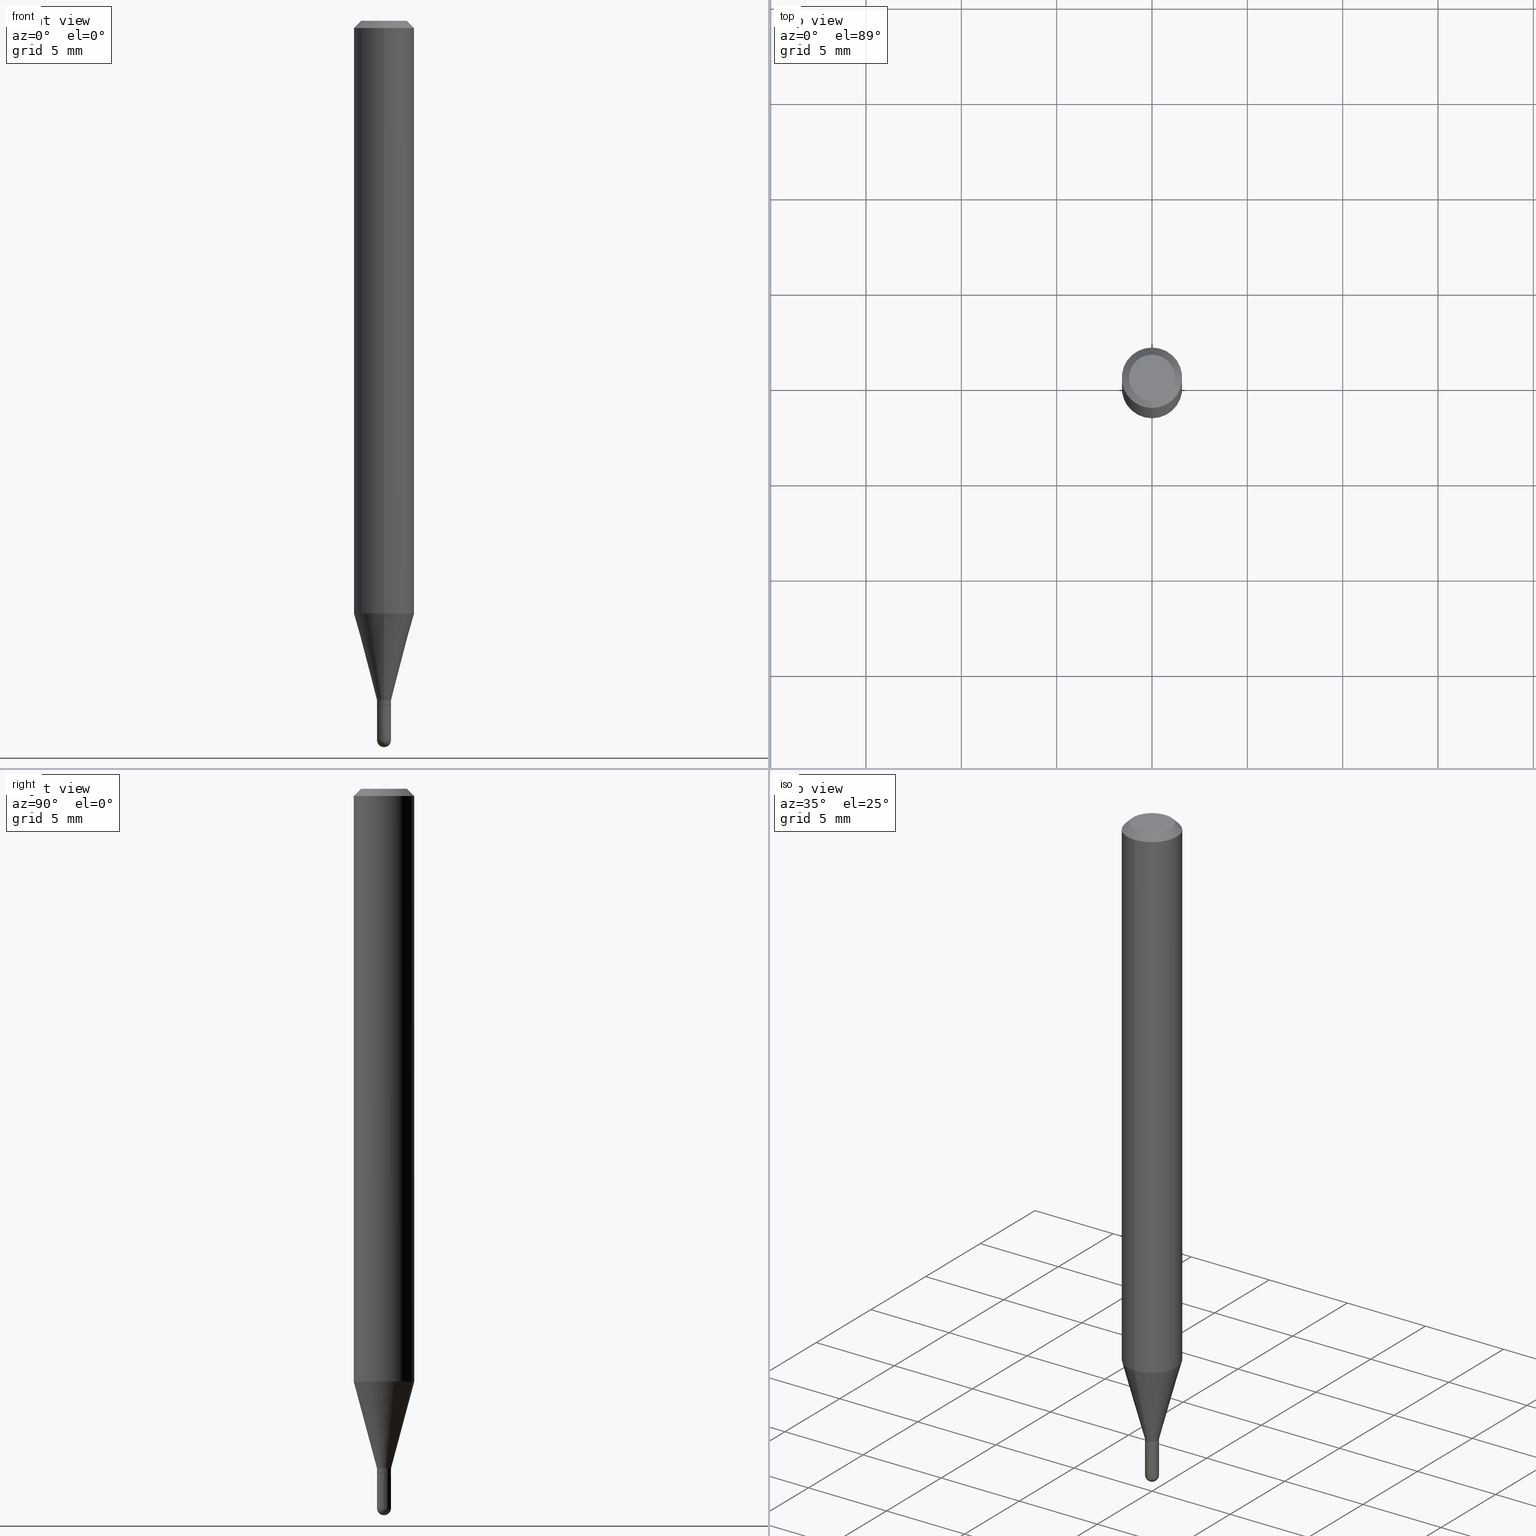
[diagram: canonical four-view strip — front | top / right | iso, engineering-drawing reading convention]
A machine part, canonical four-view strip (front | top / right | iso — engineering-drawing reading convention). The complete STEP part file that produces these views, byte-faithful:
ISO-10303-21;
HEADER;
FILE_DESCRIPTION (( 'STEP AP203' ),
    '1' );
FILE_NAME ('00906.STEP',
    '2024-03-07T18:48:20',
    ( '' ),
    ( '' ),
    'SwSTEP 2.0',
    'SolidWorks 2023',
    '' );
FILE_SCHEMA (( 'CONFIG_CONTROL_DESIGN' ));
ENDSEC;

DATA;
#1 = DIRECTION ( 'NONE',  ( 1.000000000000000000, -6.982962677686299054E-15, 0.000000000000000000 ) ) ;
#2 = ORIENTED_EDGE ( 'NONE', *, *, #342, .F. ) ;
#3 = CARTESIAN_POINT ( 'NONE',  ( 3.431010807370303051E-29, -4.898522437845382754E-15, -1.403000000000000025 ) ) ;
#4 = CONICAL_SURFACE ( 'NONE', #299, 0.01400000000000000203, 0.7853981633974739252 ) ;
#5 = CALENDAR_DATE ( 2024, 7, 3 ) ;
#6 = CARTESIAN_POINT ( 'NONE',  ( 0.01450000000000000074, -5.034716090611816663E-15, -1.413000000000000256 ) ) ;
#7 = DIRECTION ( 'NONE',  ( -2.445468806185136877E-29, 3.491481338843145188E-15, 1.000000000000000000 ) ) ;
#8 = ADVANCED_FACE ( 'NONE', ( #445 ), #252, .F. ) ;
#9 = CALENDAR_DATE ( 2024, 7, 3 ) ;
#10 = VERTEX_POINT ( 'NONE', #491 ) ;
#11 = PLANE ( 'NONE',  #356 ) ;
#12 = LINE ( 'NONE', #144, #48 ) ;
#13 = ORIENTED_EDGE ( 'NONE', *, *, #435, .T. ) ;
#14 = APPROVAL_ROLE ( '' ) ;
#15 = LINE ( 'NONE', #504, #341 ) ;
#16 = DIRECTION ( 'NONE',  ( -4.851104656540964275E-15, -0.7071067811865500152, -0.7071067811865450192 ) ) ;
#17 = AXIS2_PLACEMENT_3D ( 'NONE', #183, #284, #246 ) ;
#18 = EDGE_CURVE ( 'NONE', #275, #20, #12, .T. ) ;
#19 = CARTESIAN_POINT ( 'NONE',  ( 3.455447423139598357E-29, -4.933463131785365512E-15, -1.413000000000000256 ) ) ;
#20 = VERTEX_POINT ( 'NONE', #296 ) ;
#21 = APPROVAL_PERSON_ORGANIZATION ( #436, #364, #508 ) ;
#22 = CARTESIAN_POINT ( 'NONE',  ( 3.668222531044516962E-31, -5.237194338394923985E-17, -0.01500000000000000812 ) ) ;
#23 = ORIENTED_EDGE ( 'NONE', *, *, #510, .F. ) ;
#24 = CARTESIAN_POINT ( 'NONE',  ( 2.166989206773624835E-46, -3.093853633205331815E-32, -8.861195804374694260E-18 ) ) ;
#25 = DIRECTION ( 'NONE',  ( 1.000000000000000000, -6.982962677686266711E-15, 4.876176775795935793E-29 ) ) ;
#26 = EDGE_CURVE ( 'NONE', #87, #233, #190, .T. ) ;
#27 = CIRCLE ( 'NONE', #176, 0.01450000000000000074 ) ;
#28 = LENGTH_MEASURE_WITH_UNIT ( LENGTH_MEASURE( 0.02539999999999999897 ), #120 );
#29 = ADVANCED_BREP_SHAPE_REPRESENTATION ( '00906', ( #173, #338, #269 ), #83 ) ;
#30 = ORIENTED_EDGE ( 'NONE', *, *, #325, .F. ) ;
#31 = ORIENTED_EDGE ( 'NONE', *, *, #235, .F. ) ;
#32 = CARTESIAN_POINT ( 'NONE',  ( 4.440892098500927901E-16, 0.06249999999999995837, -0.01500000000000022669 ) ) ;
#33 = COORDINATED_UNIVERSAL_TIME_OFFSET ( 5, 0, .BEHIND. ) ;
#34 = LINE ( 'NONE', #169, #427 ) ;
#35 = CIRCLE ( 'NONE', #109, 0.06250000000000000000 ) ;
#36 = EDGE_CURVE ( 'NONE', #96, #355, #387, .T. ) ;
#37 = DIRECTION ( 'NONE',  ( -2.445481687363009475E-29, 3.491462892263280603E-15, 1.000000000000000000 ) ) ;
#38 = ORIENTED_EDGE ( 'NONE', *, *, #342, .T. ) ;
#39 = CARTESIAN_POINT ( 'NONE',  ( 3.631503920468710854E-29, -5.188371266710256857E-15, -1.485500000000000043 ) ) ;
#40 = DATE_AND_TIME ( #227, #495 ) ;
#41 = EDGE_LOOP ( 'NONE', ( #374, #507, #201, #51 ) ) ;
#42 = PLANE ( 'NONE',  #312 ) ;
#43 = CARTESIAN_POINT ( 'NONE',  ( 3.455465624243933056E-29, -4.933437066768016053E-15, -1.413000000000000256 ) ) ;
#44 = ORIENTED_EDGE ( 'NONE', *, *, #428, .F. ) ;
#45 = DIRECTION ( 'NONE',  ( 4.937700262164548042E-15, 0.7071067811865451302, -0.7071067811865499042 ) ) ;
#46 = ADVANCED_FACE ( 'NONE', ( #300 ), #346, .T. ) ;
#47 = FACE_OUTER_BOUND ( 'NONE', #429, .T. ) ;
#48 = VECTOR ( 'NONE', #62, 39.37007874015748854 ) ;
#49 = DATE_TIME_ROLE ( 'classification_date' ) ;
#50 = AXIS2_PLACEMENT_3D ( 'NONE', #22, #98, #411 ) ;
#51 = ORIENTED_EDGE ( 'NONE', *, *, #168, .F. ) ;
#52 = ORIENTED_EDGE ( 'NONE', *, *, #380, .F. ) ;
#53 = DIRECTION ( 'NONE',  ( -2.445468806185136597E-29, 3.491481338843145583E-15, 1.000000000000000000 ) ) ;
#54 = VERTEX_POINT ( 'NONE', #100 ) ;
#55 = DIRECTION ( 'NONE',  ( -2.445481687363009755E-29, 3.491462892263280997E-15, 1.000000000000000000 ) ) ;
#56 = CC_DESIGN_PERSON_AND_ORGANIZATION_ASSIGNMENT ( #396, #464, ( #378 ) ) ;
#57 = DIRECTION ( 'NONE',  ( -6.982962677686265922E-15, -1.000000000000000000, 4.370956789862821150E-15 ) ) ;
#58 = AXIS2_PLACEMENT_3D ( 'NONE', #191, #259, #379 ) ;
#59 = ORIENTED_EDGE ( 'NONE', *, *, #170, .T. ) ;
#60 = VECTOR ( 'NONE', #289, 39.37007874015748143 ) ;
#61 = ORIENTED_EDGE ( 'NONE', *, *, #194, .F. ) ;
#62 = DIRECTION ( 'NONE',  ( 1.839019923739601893E-15, 0.2588190451025252359, 0.9659258262890670910 ) ) ;
#63 = PRODUCT ( '00906', '00906', '', ( #432 ) ) ;
#64 = EDGE_CURVE ( 'NONE', #331, #20, #35, .T. ) ;
#65 = ADVANCED_FACE ( 'NONE', ( #492 ), #141, .T. ) ;
#66 = CARTESIAN_POINT ( 'NONE',  ( -1.012529588264503255E-16, -0.01449999999999992441, 5.062621193781730250E-17 ) ) ;
#67 = CIRCLE ( 'NONE', #437, 0.01449999999999992441 ) ;
#68 = LOCAL_TIME ( 13, 48, 20.00000000000000000, #236 ) ;
#69 = CARTESIAN_POINT ( 'NONE',  ( 3.455465624243933056E-29, -4.933437066768016053E-15, -1.413000000000000256 ) ) ;
#70 = DIRECTION ( 'NONE',  ( -1.000000000000000000, 7.105427357601001070E-15, -4.926315508542082329E-29 ) ) ;
#71 = EDGE_LOOP ( 'NONE', ( #385, #405, #106, #292 ) ) ;
#72 = SECURITY_CLASSIFICATION_LEVEL ( 'unclassified' ) ;
#73 = CIRCLE ( 'NONE', #381, 0.01450000000000003890 ) ;
#74 = ORIENTED_EDGE ( 'NONE', *, *, #249, .T. ) ;
#75 = CARTESIAN_POINT ( 'NONE',  ( 0.01450000000000000074, -5.161282289144880799E-15, -1.485500000000000043 ) ) ;
#76 =( CONVERSION_BASED_UNIT ( 'INCH', #28 ) LENGTH_UNIT ( ) NAMED_UNIT ( #466 ) );
#77 = CARTESIAN_POINT ( 'NONE',  ( 3.455465624243933056E-29, -4.933437066768016053E-15, -1.413000000000000256 ) ) ;
#78 = PRODUCT_DEFINITION ( 'UNKNOWN', '', #378, #324 ) ;
#79 = PERSON_AND_ORGANIZATION ( #358, #416 ) ;
#80 = FACE_OUTER_BOUND ( 'NONE', #389, .T. ) ;
#81 = ORIENTED_EDGE ( 'NONE', *, *, #18, .F. ) ;
#82 = CIRCLE ( 'NONE', #228, 0.01449999999999992441 ) ;
#83 =( GEOMETRIC_REPRESENTATION_CONTEXT ( 3 ) GLOBAL_UNCERTAINTY_ASSIGNED_CONTEXT ( ( #455 ) ) GLOBAL_UNIT_ASSIGNED_CONTEXT ( ( #76, #160, #506 ) ) REPRESENTATION_CONTEXT ( 'NONE', 'WORKASPACE' ) );
#84 = APPROVAL_STATUS ( 'not_yet_approved' ) ;
#85 = ORIENTED_EDGE ( 'NONE', *, *, #202, .T. ) ;
#86 = CARTESIAN_POINT ( 'NONE',  ( 0.000000000000000000, 0.000000000000000000, 0.000000000000000000 ) ) ;
#87 = VERTEX_POINT ( 'NONE', #75 ) ;
#88 = DIRECTION ( 'NONE',  ( 6.982962677686265922E-15, 1.000000000000000000, 0.000000000000000000 ) ) ;
#89 = EDGE_LOOP ( 'NONE', ( #85, #490, #2, #392, #266 ) ) ;
#90 = CARTESIAN_POINT ( 'NONE',  ( 2.735589532676705169E-16, 0.01449999999999502555, -1.403000000000000025 ) ) ;
#91 = ORIENTED_EDGE ( 'NONE', *, *, #472, .F. ) ;
#92 = CIRCLE ( 'NONE', #58, 0.04749999999999999362 ) ;
#93 = LOCAL_TIME ( 13, 48, 20.00000000000000000, #179 ) ;
#94 = LINE ( 'NONE', #251, #219 ) ;
#95 = ADVANCED_FACE ( 'NONE', ( #493 ), #146, .T. ) ;
#96 = VERTEX_POINT ( 'NONE', #101 ) ;
#97 = SPHERICAL_SURFACE ( 'NONE', #198, 0.01450000000000003890 ) ;
#98 = DIRECTION ( 'NONE',  ( -2.445481687363009475E-29, 3.491462892263280603E-15, 1.000000000000000000 ) ) ;
#99 = CARTESIAN_POINT ( 'NONE',  ( 1.012529588264854174E-16, 0.01449999999999506545, -1.413000000000000256 ) ) ;
#100 = CARTESIAN_POINT ( 'NONE',  ( 3.667583213718050413E-29, -5.238109877194100108E-15, -1.500000000000000222 ) ) ;
#101 = CARTESIAN_POINT ( 'NONE',  ( 1.012523398458485463E-16, 0.01399999999999506674, -1.413000000000000256 ) ) ;
#102 = AXIS2_PLACEMENT_3D ( 'NONE', #494, #443, #210 ) ;
#103 = CLOSED_SHELL ( 'NONE', ( #164, #205, #127, #149, #46, #258, #332, #372, #243, #281, #119, #65 ) ) ;
#104 = AXIS2_PLACEMENT_3D ( 'NONE', #152, #304, #424 ) ;
#105 = EDGE_CURVE ( 'NONE', #434, #320, #92, .T. ) ;
#106 = ORIENTED_EDGE ( 'NONE', *, *, #168, .T. ) ;
#107 = CARTESIAN_POINT ( 'NONE',  ( 3.454242883400251668E-29, -4.931691335321885256E-15, -1.412500000000000311 ) ) ;
#108 = DIRECTION ( 'NONE',  ( 6.982962677686265922E-15, 1.000000000000000000, -3.483106191921935554E-15 ) ) ;
#109 = AXIS2_PLACEMENT_3D ( 'NONE', #255, #297, #337 ) ;
#110 = AXIS2_PLACEMENT_3D ( 'NONE', #357, #511, #166 ) ;
#111 = EDGE_LOOP ( 'NONE', ( #272, #402 ) ) ;
#112 = APPLICATION_CONTEXT ( 'configuration controlled 3d designs of mechanical parts and assemblies' ) ;
#113 = CARTESIAN_POINT ( 'NONE',  ( 0.000000000000000000, 0.000000000000000000, 0.000000000000000000 ) ) ;
#114 = PERSON_AND_ORGANIZATION ( #358, #416 ) ;
#115 = ORIENTED_EDGE ( 'NONE', *, *, #140, .F. ) ;
#116 = AXIS2_PLACEMENT_3D ( 'NONE', #450, #458, #25 ) ;
#117 = DATE_AND_TIME ( #469, #461 ) ;
#118 = ORIENTED_EDGE ( 'NONE', *, *, #325, .T. ) ;
#119 = ADVANCED_FACE ( 'NONE', ( #418 ), #186, .T. ) ;
#120 =( LENGTH_UNIT ( ) NAMED_UNIT ( * ) SI_UNIT ( $, .METRE. ) );
#121 = CARTESIAN_POINT ( 'NONE',  ( 3.631503920468710854E-29, -5.188371266710256857E-15, -1.485500000000000043 ) ) ;
#122 = DIRECTION ( 'NONE',  ( 6.982962677686265922E-15, 1.000000000000000000, -3.483106191921935554E-15 ) ) ;
#123 = DATE_TIME_ROLE ( 'creation_date' ) ;
#124 = ORIENTED_EDGE ( 'NONE', *, *, #428, .T. ) ;
#125 = CARTESIAN_POINT ( 'NONE',  ( 3.632743911588020939E-29, -5.186595528851492996E-15, -1.485500000000000043 ) ) ;
#126 = VERTEX_POINT ( 'NONE', #288 ) ;
#127 = ADVANCED_FACE ( 'NONE', ( #442 ), #452, .T. ) ;
#128 = CIRCLE ( 'NONE', #503, 0.01450000000000000074 ) ;
#129 = DIRECTION ( 'NONE',  ( -6.982962677686265922E-15, -1.000000000000000000, 0.000000000000000000 ) ) ;
#130 = DIRECTION ( 'NONE',  ( -2.445468806185136597E-29, 3.491481338843145583E-15, 1.000000000000000000 ) ) ;
#131 = ORIENTED_EDGE ( 'NONE', *, *, #194, .T. ) ;
#132 = CARTESIAN_POINT ( 'NONE',  ( 3.632743911588020939E-29, -5.186595528851492996E-15, -1.485500000000000043 ) ) ;
#133 = ORIENTED_EDGE ( 'NONE', *, *, #285, .F. ) ;
#134 = VERTEX_POINT ( 'NONE', #32 ) ;
#135 = DIRECTION ( 'NONE',  ( 6.982962677686265922E-15, 1.000000000000000000, 0.000000000000000000 ) ) ;
#136 = CONICAL_SURFACE ( 'NONE', #420, 0.01449999999999992441, 0.2617993877991505181 ) ;
#137 = DATE_AND_TIME ( #5, #478 ) ;
#138 = CC_DESIGN_APPROVAL ( #215, ( #199 ) ) ;
#139 = CARTESIAN_POINT ( 'NONE',  ( 3.631503920468710854E-29, -5.188371266710256857E-15, -1.485500000000000043 ) ) ;
#140 = EDGE_CURVE ( 'NONE', #320, #415, #398, .T. ) ;
#141 = CYLINDRICAL_SURFACE ( 'NONE', #102, 0.01449999999999992441 ) ;
#142 = LINE ( 'NONE', #200, #193 ) ;
#143 = VERTEX_POINT ( 'NONE', #159 ) ;
#144 = CARTESIAN_POINT ( 'NONE',  ( 1.030286966852482683E-16, 0.01449999999999502555, -1.403000000000000025 ) ) ;
#145 = DIRECTION ( 'NONE',  ( -6.982962677686265922E-15, -1.000000000000000000, 0.000000000000000000 ) ) ;
#146 = CYLINDRICAL_SURFACE ( 'NONE', #400, 0.01450000000000000074 ) ;
#147 = CYLINDRICAL_SURFACE ( 'NONE', #17, 0.06250000000000000000 ) ;
#148 = DIRECTION ( 'NONE',  ( -2.445481687363009475E-29, 3.491462892263280603E-15, 1.000000000000000000 ) ) ;
#149 = ADVANCED_FACE ( 'NONE', ( #480 ), #147, .T. ) ;
#150 = VECTOR ( 'NONE', #45, 39.37007874015748143 ) ;
#151 = VECTOR ( 'NONE', #222, 39.37007874015748854 ) ;
#152 = CARTESIAN_POINT ( 'NONE',  ( 3.455447423139598357E-29, -4.933463131785365512E-15, -1.413000000000000256 ) ) ;
#153 = CC_DESIGN_PERSON_AND_ORGANIZATION_ASSIGNMENT ( #351, #426, ( #78 ) ) ;
#154 = ORIENTED_EDGE ( 'NONE', *, *, #340, .T. ) ;
#155 = CARTESIAN_POINT ( 'NONE',  ( -1.030286966851783185E-16, -0.01450000000000520838, -1.485500000000000043 ) ) ;
#156 = AXIS2_PLACEMENT_3D ( 'NONE', #125, #282, #1 ) ;
#157 = CIRCLE ( 'NONE', #177, 0.01450000000000003890 ) ;
#158 = EDGE_LOOP ( 'NONE', ( #30, #425, #295, #31 ) ) ;
#159 = CARTESIAN_POINT ( 'NONE',  ( -0.01450000000000000074, -4.957000633633214635E-15, -1.485500000000000043 ) ) ;
#160 =( NAMED_UNIT ( * ) PLANE_ANGLE_UNIT ( ) SI_UNIT ( $, .RADIAN. ) );
#161 = ADVANCED_FACE ( 'NONE', ( #47 ), #97, .T. ) ;
#162 = DIRECTION ( 'NONE',  ( 2.445481687363009475E-29, -3.491462892263280603E-15, -1.000000000000000000 ) ) ;
#163 = ORIENTED_EDGE ( 'NONE', *, *, #451, .T. ) ;
#164 = ADVANCED_FACE ( 'NONE', ( #80 ), #406, .T. ) ;
#165 = AXIS2_PLACEMENT_3D ( 'NONE', #448, #216, #108 ) ;
#166 = DIRECTION ( 'NONE',  ( 1.000000000000000000, -6.982962677686299054E-15, 0.000000000000000000 ) ) ;
#167 = DATE_AND_TIME ( #403, #68 ) ;
#168 = EDGE_CURVE ( 'NONE', #355, #10, #241, .T. ) ;
#169 = CARTESIAN_POINT ( 'NONE',  ( -4.364351673553916201E-16, -0.06250000000000000000, 2.182164307664550130E-16 ) ) ;
#170 = EDGE_CURVE ( 'NONE', #476, #10, #256, .T. ) ;
#171 = ORIENTED_EDGE ( 'NONE', *, *, #64, .T. ) ;
#172 = ORIENTED_EDGE ( 'NONE', *, *, #262, .F. ) ;
#173 = MANIFOLD_SOLID_BREP ( 'Body-Move/Copy2[1]', #352 ) ;
#174 = DIRECTION ( 'NONE',  ( -6.982962677686265922E-15, -1.000000000000000000, 3.491462892263280603E-15 ) ) ;
#175 = ORIENTED_EDGE ( 'NONE', *, *, #220, .T. ) ;
#176 = AXIS2_PLACEMENT_3D ( 'NONE', #132, #53, #433 ) ;
#177 = AXIS2_PLACEMENT_3D ( 'NONE', #139, #70, #486 ) ;
#178 = AXIS2_PLACEMENT_3D ( 'NONE', #69, #224, #347 ) ;
#179 = COORDINATED_UNIVERSAL_TIME_OFFSET ( 5, 0, .BEHIND. ) ;
#180 = CARTESIAN_POINT ( 'NONE',  ( -9.776147748757317543E-17, -0.01400000000000493558, -1.413000000000000256 ) ) ;
#181 = CARTESIAN_POINT ( 'NONE',  ( 3.455465624243933056E-29, -4.933437066768016053E-15, -1.413000000000000256 ) ) ;
#182 = CARTESIAN_POINT ( 'NONE',  ( -4.287811248607203282E-16, -0.06250000000000005551, -0.01499999999999979128 ) ) ;
#183 = CARTESIAN_POINT ( 'NONE',  ( 0.000000000000000000, 0.000000000000000000, 0.000000000000000000 ) ) ;
#184 = EDGE_CURVE ( 'NONE', #87, #439, #27, .T. ) ;
#185 = CARTESIAN_POINT ( 'NONE',  ( -9.776147748757317543E-17, -0.01400000000000493558, -1.413000000000000256 ) ) ;
#186 = CONICAL_SURFACE ( 'NONE', #459, 0.01400000000000000203, 0.7853981633974739252 ) ;
#187 = VECTOR ( 'NONE', #217, 39.37007874015748143 ) ;
#188 = DIRECTION ( 'NONE',  ( -2.445468806185136597E-29, 3.491481338843145583E-15, 1.000000000000000000 ) ) ;
#189 = DIRECTION ( 'NONE',  ( -6.982962677686265922E-15, -1.000000000000000000, 0.000000000000000000 ) ) ;
#190 = LINE ( 'NONE', #339, #192 ) ;
#191 = CARTESIAN_POINT ( 'NONE',  ( 2.166989206773624835E-46, -3.093853633205331815E-32, -8.861195804374694260E-18 ) ) ;
#192 = VECTOR ( 'NONE', #7, 39.37007874015748143 ) ;
#193 = VECTOR ( 'NONE', #350, 39.37007874015748143 ) ;
#194 = EDGE_CURVE ( 'NONE', #126, #275, #82, .T. ) ;
#195 = DIRECTION ( 'NONE',  ( 1.000000000000000000, -6.982962677686299054E-15, 0.000000000000000000 ) ) ;
#196 = CARTESIAN_POINT ( 'NONE',  ( 3.840629472727447874E-16, 0.04749999999999999362, -1.747056831868805136E-16 ) ) ;
#197 = CARTESIAN_POINT ( 'NONE',  ( -0.01450000000000000074, 1.030286966852145322E-16, -7.132455880869613131E-31 ) ) ;
#198 = AXIS2_PLACEMENT_3D ( 'NONE', #505, #471, #88 ) ;
#199 = SECURITY_CLASSIFICATION ( '', '', #72 ) ;
#200 = CARTESIAN_POINT ( 'NONE',  ( 9.947598300644857774E-17, 0.01399999999999506674, -1.413000000000000256 ) ) ;
#201 = ORIENTED_EDGE ( 'NONE', *, *, #340, .F. ) ;
#202 = EDGE_CURVE ( 'NONE', #439, #143, #377, .T. ) ;
#203 = DIRECTION ( 'NONE',  ( 6.982962677686265922E-15, 1.000000000000000000, -3.491462892263280997E-15 ) ) ;
#204 = CC_DESIGN_SECURITY_CLASSIFICATION ( #199, ( #378 ) ) ;
#205 = ADVANCED_FACE ( 'NONE', ( #481 ), #4, .T. ) ;
#206 = APPLICATION_PROTOCOL_DEFINITION ( 'international standard', 'config_control_design', 1994, #112 ) ;
#207 = FACE_OUTER_BOUND ( 'NONE', #311, .T. ) ;
#208 = DIRECTION ( 'NONE',  ( -6.982962677686265922E-15, -1.000000000000000000, 0.000000000000000000 ) ) ;
#209 = ORIENTED_EDGE ( 'NONE', *, *, #391, .T. ) ;
#210 = DIRECTION ( 'NONE',  ( -6.982962677686265922E-15, -1.000000000000000000, 3.491462892263280603E-15 ) ) ;
#211 = FACE_OUTER_BOUND ( 'NONE', #349, .T. ) ;
#212 = CIRCLE ( 'NONE', #409, 0.01450000000000000074 ) ;
#213 = DIRECTION ( 'NONE',  ( 6.982962677686265922E-15, 1.000000000000000000, 0.000000000000000000 ) ) ;
#214 = EDGE_LOOP ( 'NONE', ( #38, #270 ) ) ;
#215 = APPROVAL ( #218, 'UNSPECIFIED' ) ;
#216 = DIRECTION ( 'NONE',  ( 2.445481687363009475E-29, -3.491462892263280603E-15, -1.000000000000000000 ) ) ;
#217 = DIRECTION ( 'NONE',  ( -2.445468806185136877E-29, 3.491481338843145188E-15, 1.000000000000000000 ) ) ;
#218 = APPROVAL_STATUS ( 'not_yet_approved' ) ;
#219 = VECTOR ( 'NONE', #55, 39.37007874015748143 ) ;
#220 = EDGE_CURVE ( 'NONE', #54, #439, #73, .T. ) ;
#221 = DIRECTION ( 'NONE',  ( -2.445481687363009475E-29, 3.491462892263280603E-15, 1.000000000000000000 ) ) ;
#222 = DIRECTION ( 'NONE',  ( -1.807323732225331717E-15, -0.2588190451025184080, 0.9659258262890689783 ) ) ;
#223 = AXIS2_PLACEMENT_3D ( 'NONE', #24, #265, #419 ) ;
#224 = DIRECTION ( 'NONE',  ( -2.445481687363009475E-29, 3.491462892263280603E-15, 1.000000000000000000 ) ) ;
#225 = FACE_OUTER_BOUND ( 'NONE', #318, .T. ) ;
#226 = ORIENTED_EDGE ( 'NONE', *, *, #184, .F. ) ;
#227 = CALENDAR_DATE ( 2024, 7, 3 ) ;
#228 = AXIS2_PLACEMENT_3D ( 'NONE', #238, #475, #273 ) ;
#229 = CIRCLE ( 'NONE', #348, 0.06250000000000000000 ) ;
#230 = ADVANCED_FACE ( 'NONE', ( #319 ), #279, .T. ) ;
#231 = EDGE_LOOP ( 'NONE', ( #115, #497, #317, #209 ) ) ;
#232 = PERSON_AND_ORGANIZATION ( #358, #416 ) ;
#233 = VERTEX_POINT ( 'NONE', #6 ) ;
#234 = DIRECTION ( 'NONE',  ( -2.445481687363008914E-29, 3.491462892263280997E-15, 1.000000000000000000 ) ) ;
#235 = EDGE_CURVE ( 'NONE', #434, #134, #485, .T. ) ;
#236 = COORDINATED_UNIVERSAL_TIME_OFFSET ( 5, 0, .BEHIND. ) ;
#237 = AXIS2_PLACEMENT_3D ( 'NONE', #245, #162, #122 ) ;
#238 = CARTESIAN_POINT ( 'NONE',  ( 3.431010807370303051E-29, -4.898522437845382754E-15, -1.403000000000000025 ) ) ;
#239 = ORIENTED_EDGE ( 'NONE', *, *, #465, .F. ) ;
#240 = ORIENTED_EDGE ( 'NONE', *, *, #435, .F. ) ;
#241 = LINE ( 'NONE', #180, #477 ) ;
#242 = EDGE_LOOP ( 'NONE', ( #394, #254, #239, #278 ) ) ;
#243 = ADVANCED_FACE ( 'NONE', ( #207 ), #42, .F. ) ;
#244 = CARTESIAN_POINT ( 'NONE',  ( 4.364351673553919652E-16, 0.06249999999999995143, -0.01500000000000022669 ) ) ;
#245 = CARTESIAN_POINT ( 'NONE',  ( 3.668222531044516962E-31, -5.237194338394923985E-17, -0.01500000000000000812 ) ) ;
#246 = DIRECTION ( 'NONE',  ( -6.982962677686265922E-15, -1.000000000000000000, 3.491462892263280208E-15 ) ) ;
#247 = ORIENTED_EDGE ( 'NONE', *, *, #391, .F. ) ;
#248 = DIRECTION ( 'NONE',  ( -2.445481687363009475E-29, 3.491462892263280603E-15, 1.000000000000000000 ) ) ;
#249 = EDGE_CURVE ( 'NONE', #331, #415, #34, .T. ) ;
#250 = AXIS2_PLACEMENT_3D ( 'NONE', #404, #410, #129 ) ;
#251 = CARTESIAN_POINT ( 'NONE',  ( 1.030286966852139652E-16, 0.01449999999999992441, -5.062621193781730250E-17 ) ) ;
#252 = PLANE ( 'NONE',  #268 ) ;
#253 = CARTESIAN_POINT ( 'NONE',  ( 3.632743911588020939E-29, -5.186595528851492996E-15, -1.485500000000000043 ) ) ;
#254 = ORIENTED_EDGE ( 'NONE', *, *, #345, .T. ) ;
#255 = CARTESIAN_POINT ( 'NONE',  ( 2.992931035871838539E-29, -4.273067226325322943E-15, -1.223861561236694540 ) ) ;
#256 = CIRCLE ( 'NONE', #250, 0.01449999999999992614 ) ;
#257 = CIRCLE ( 'NONE', #50, 0.06250000000000000000 ) ;
#258 = ADVANCED_FACE ( 'NONE', ( #211 ), #136, .T. ) ;
#259 = DIRECTION ( 'NONE',  ( -2.445481687363009475E-29, 3.491462892263280603E-15, 1.000000000000000000 ) ) ;
#260 = CARTESIAN_POINT ( 'NONE',  ( 2.992931035871838539E-29, -4.273067226325322943E-15, -1.223861561236694540 ) ) ;
#261 = ORIENTED_EDGE ( 'NONE', *, *, #472, .T. ) ;
#262 = EDGE_CURVE ( 'NONE', #275, #126, #67, .T. ) ;
#263 = LINE ( 'NONE', #197, #187 ) ;
#264 = CC_DESIGN_APPROVAL ( #307, ( #78 ) ) ;
#265 = DIRECTION ( 'NONE',  ( -2.445481687363009475E-29, 3.491462892263280603E-15, 1.000000000000000000 ) ) ;
#266 = ORIENTED_EDGE ( 'NONE', *, *, #184, .T. ) ;
#267 = APPLICATION_PROTOCOL_DEFINITION ( 'international standard', 'config_control_design', 1994, #487 ) ;
#268 = AXIS2_PLACEMENT_3D ( 'NONE', #99, #336, #414 ) ;
#269 = AXIS2_PLACEMENT_3D ( 'NONE', #474, #512, #509 ) ;
#270 = ORIENTED_EDGE ( 'NONE', *, *, #483, .T. ) ;
#271 = PERSON_AND_ORGANIZATION_ROLE ( 'classification_officer' ) ;
#272 = ORIENTED_EDGE ( 'NONE', *, *, #421, .F. ) ;
#273 = DIRECTION ( 'NONE',  ( -6.982962677686265922E-15, -1.000000000000000000, 0.000000000000000000 ) ) ;
#274 = ORIENTED_EDGE ( 'NONE', *, *, #26, .T. ) ;
#275 = VERTEX_POINT ( 'NONE', #90 ) ;
#276 = COORDINATED_UNIVERSAL_TIME_OFFSET ( 5, 0, .BEHIND. ) ;
#277 = ORIENTED_EDGE ( 'NONE', *, *, #309, .T. ) ;
#278 = ORIENTED_EDGE ( 'NONE', *, *, #202, .F. ) ;
#279 = SPHERICAL_SURFACE ( 'NONE', #367, 0.01450000000000003890 ) ;
#280 = ORIENTED_EDGE ( 'NONE', *, *, #451, .F. ) ;
#281 = ADVANCED_FACE ( 'NONE', ( #371 ), #11, .F. ) ;
#282 = DIRECTION ( 'NONE',  ( -2.445468806185136597E-29, 3.491481338843145583E-15, 1.000000000000000000 ) ) ;
#283 = DIRECTION ( 'NONE',  ( -6.982962677686265922E-15, -1.000000000000000000, 0.000000000000000000 ) ) ;
#284 = DIRECTION ( 'NONE',  ( -2.445481687363009475E-29, 3.491462892263280603E-15, 1.000000000000000000 ) ) ;
#285 = EDGE_CURVE ( 'NONE', #441, #87, #468, .T. ) ;
#286 = ORIENTED_EDGE ( 'NONE', *, *, #483, .F. ) ;
#287 = DIRECTION ( 'NONE',  ( -2.445481687363009475E-29, 3.491462892263280603E-15, 1.000000000000000000 ) ) ;
#288 = CARTESIAN_POINT ( 'NONE',  ( -1.012529588264160223E-16, -0.01450000000000482153, -1.403000000000000025 ) ) ;
#289 = DIRECTION ( 'NONE',  ( -2.445481687363009755E-29, 3.491462892263280997E-15, 1.000000000000000000 ) ) ;
#290 = APPROVAL_PERSON_ORGANIZATION ( #232, #307, #354 ) ;
#291 = FACE_OUTER_BOUND ( 'NONE', #484, .T. ) ;
#292 = ORIENTED_EDGE ( 'NONE', *, *, #170, .F. ) ;
#293 = CARTESIAN_POINT ( 'NONE',  ( 3.431010807370303051E-29, -4.898522437845382754E-15, -1.403000000000000025 ) ) ;
#294 = DIRECTION ( 'NONE',  ( -2.445481687363009475E-29, 3.491462892263280603E-15, 1.000000000000000000 ) ) ;
#295 = ORIENTED_EDGE ( 'NONE', *, *, #510, .T. ) ;
#296 = CARTESIAN_POINT ( 'NONE',  ( 4.440892098500922971E-16, 0.06249999999999571176, -1.223861561236694762 ) ) ;
#297 = DIRECTION ( 'NONE',  ( -2.445481687363009475E-29, 3.491462892263280603E-15, 1.000000000000000000 ) ) ;
#298 = CARTESIAN_POINT ( 'NONE',  ( 0.000000000000000000, 0.000000000000000000, 0.000000000000000000 ) ) ;
#299 = AXIS2_PLACEMENT_3D ( 'NONE', #440, #444, #369 ) ;
#300 = FACE_OUTER_BOUND ( 'NONE', #365, .T. ) ;
#301 = AXIS2_PLACEMENT_3D ( 'NONE', #107, #344, #498 ) ;
#302 = DIRECTION ( 'NONE',  ( 1.000000000000000000, -6.982962677686266711E-15, 4.876176775795935793E-29 ) ) ;
#303 = CC_DESIGN_PERSON_AND_ORGANIZATION_ASSIGNMENT ( #114, #310, ( #378 ) ) ;
#304 = DIRECTION ( 'NONE',  ( -2.445468806185136597E-29, 3.491481338843145583E-15, 1.000000000000000000 ) ) ;
#305 = AXIS2_PLACEMENT_3D ( 'NONE', #86, #248, #174 ) ;
#306 = FACE_OUTER_BOUND ( 'NONE', #231, .T. ) ;
#307 = APPROVAL ( #393, 'UNSPECIFIED' ) ;
#308 = COORDINATED_UNIVERSAL_TIME_OFFSET ( 5, 0, .BEHIND. ) ;
#309 = EDGE_CURVE ( 'NONE', #126, #331, #316, .T. ) ;
#310 = PERSON_AND_ORGANIZATION_ROLE ( 'design_supplier' ) ;
#311 = EDGE_LOOP ( 'NONE', ( #362, #118 ) ) ;
#312 = AXIS2_PLACEMENT_3D ( 'NONE', #360, #329, #203 ) ;
#313 = APPROVAL_PERSON_ORGANIZATION ( #488, #215, #14 ) ;
#314 = CARTESIAN_POINT ( 'NONE',  ( -0.01450000000000000074, -4.957000633633214635E-15, -1.413000000000000256 ) ) ;
#315 = CC_DESIGN_PERSON_AND_ORGANIZATION_ASSIGNMENT ( #388, #271, ( #199 ) ) ;
#316 = LINE ( 'NONE', #375, #151 ) ;
#317 = ORIENTED_EDGE ( 'NONE', *, *, #235, .T. ) ;
#318 = EDGE_LOOP ( 'NONE', ( #52, #323, #413, #274, #286 ) ) ;
#319 = FACE_OUTER_BOUND ( 'NONE', #242, .T. ) ;
#320 = VERTEX_POINT ( 'NONE', #335 ) ;
#321 = CARTESIAN_POINT ( 'NONE',  ( 3.431010807370303051E-29, -4.898522437845382754E-15, -1.403000000000000025 ) ) ;
#322 = CIRCLE ( 'NONE', #301, 0.01449999999999992614 ) ;
#323 = ORIENTED_EDGE ( 'NONE', *, *, #465, .T. ) ;
#324 = DESIGN_CONTEXT ( 'detailed design', #487, 'design' ) ;
#325 = EDGE_CURVE ( 'NONE', #320, #434, #390, .T. ) ;
#326 = PRODUCT_DEFINITION_SHAPE ( 'NONE', 'NONE',  #78 ) ;
#327 = DIRECTION ( 'NONE',  ( -2.445481687363009475E-29, 3.491462892263280603E-15, 1.000000000000000000 ) ) ;
#328 = APPROVAL_DATE_TIME ( #330, #215 ) ;
#329 = DIRECTION ( 'NONE',  ( 2.445481687363008914E-29, -3.491462892263280997E-15, -1.000000000000000000 ) ) ;
#330 = DATE_AND_TIME ( #9, #93 ) ;
#331 = VERTEX_POINT ( 'NONE', #343 ) ;
#332 = ADVANCED_FACE ( 'NONE', ( #291 ), #462, .T. ) ;
#333 = CARTESIAN_POINT ( 'NONE',  ( 1.012529588264873156E-16, 0.01449999999999483126, -1.485500000000000043 ) ) ;
#334 = AXIS2_PLACEMENT_3D ( 'NONE', #293, #221, #145 ) ;
#335 = CARTESIAN_POINT ( 'NONE',  ( -3.773273898774340269E-16, -0.04749999999999999362, 1.569832915781311190E-16 ) ) ;
#336 = DIRECTION ( 'NONE',  ( 2.438088387897960049E-29, -3.491481338843145188E-15, -1.000000000000000000 ) ) ;
#337 = DIRECTION ( 'NONE',  ( -6.982962677686265922E-15, -1.000000000000000000, 4.370956789862821150E-15 ) ) ;
#338 = MANIFOLD_SOLID_BREP ( 'Body-Move/Copy2[2]', #103 ) ;
#339 = CARTESIAN_POINT ( 'NONE',  ( 0.01450000000000000074, -1.012529588264508678E-16, 7.070456324904107110E-31 ) ) ;
#340 = EDGE_CURVE ( 'NONE', #10, #476, #322, .T. ) ;
#341 = VECTOR ( 'NONE', #384, 39.37007874015748143 ) ;
#342 = EDGE_CURVE ( 'NONE', #233, #502, #382, .T. ) ;
#343 = CARTESIAN_POINT ( 'NONE',  ( -4.364351673553617913E-16, -0.06250000000000427436, -1.223861561236694095 ) ) ;
#344 = DIRECTION ( 'NONE',  ( -2.445481687363009475E-29, 3.491462892263280603E-15, 1.000000000000000000 ) ) ;
#345 = EDGE_CURVE ( 'NONE', #54, #441, #157, .T. ) ;
#346 = CONICAL_SURFACE ( 'NONE', #334, 0.01449999999999992441, 0.2617993877991505181 ) ;
#347 = DIRECTION ( 'NONE',  ( -6.982962677686265922E-15, -1.000000000000000000, 0.000000000000000000 ) ) ;
#348 = AXIS2_PLACEMENT_3D ( 'NONE', #470, #37, #399 ) ;
#349 = EDGE_LOOP ( 'NONE', ( #81, #407, #277, #91 ) ) ;
#350 = DIRECTION ( 'NONE',  ( 5.024295867788190974E-15, 0.7071067811865681119, 0.7071067811865270336 ) ) ;
#351 = PERSON_AND_ORGANIZATION ( #358, #416 ) ;
#352 = CLOSED_SHELL ( 'NONE', ( #95, #230, #8, #161, #353 ) ) ;
#353 = ADVANCED_FACE ( 'NONE', ( #225 ), #386, .T. ) ;
#354 = APPROVAL_ROLE ( '' ) ;
#355 = VERTEX_POINT ( 'NONE', #185 ) ;
#356 = AXIS2_PLACEMENT_3D ( 'NONE', #77, #234, #397 ) ;
#357 = CARTESIAN_POINT ( 'NONE',  ( 3.632743911588020939E-29, -5.186595528851492996E-15, -1.485500000000000043 ) ) ;
#358 = PERSON ( 'UNSPECIFIED', 'UNSPECIFIED', 'UNSPECIFIED', ('UNSPECIFIED'), ('UNSPECIFIED'), ('UNSPECIFIED') ) ;
#359 = APPROVAL_DATE_TIME ( #117, #307 ) ;
#360 = CARTESIAN_POINT ( 'NONE',  ( 3.316907271900976096E-16, 0.04749999999999999362, -1.702750852846931465E-16 ) ) ;
#361 = APPROVAL_DATE_TIME ( #40, #364 ) ;
#362 = ORIENTED_EDGE ( 'NONE', *, *, #105, .T. ) ;
#363 = DIRECTION ( 'NONE',  ( -1.000000000000000000, 6.982962677686265922E-15, -4.883557194083112340E-29 ) ) ;
#364 = APPROVAL ( #84, 'UNSPECIFIED' ) ;
#365 = EDGE_LOOP ( 'NONE', ( #131, #463, #373, #408 ) ) ;
#366 = SHAPE_DEFINITION_REPRESENTATION ( #326, #29 ) ;
#367 = AXIS2_PLACEMENT_3D ( 'NONE', #39, #363, #135 ) ;
#368 = AXIS2_PLACEMENT_3D ( 'NONE', #260, #412, #57 ) ;
#369 = DIRECTION ( 'NONE',  ( -6.982962677686265922E-15, -1.000000000000000000, 0.000000000000000000 ) ) ;
#370 = EDGE_LOOP ( 'NONE', ( #280, #59, #13, #172 ) ) ;
#371 = FACE_OUTER_BOUND ( 'NONE', #111, .T. ) ;
#372 = ADVANCED_FACE ( 'NONE', ( #306 ), #422, .T. ) ;
#373 = ORIENTED_EDGE ( 'NONE', *, *, #64, .F. ) ;
#374 = ORIENTED_EDGE ( 'NONE', *, *, #421, .T. ) ;
#375 = CARTESIAN_POINT ( 'NONE',  ( -1.012529588264160223E-16, -0.01450000000000482153, -1.403000000000000025 ) ) ;
#376 = CARTESIAN_POINT ( 'NONE',  ( 1.030286966852481820E-16, 0.01449999999999494402, -1.412500000000000311 ) ) ;
#377 = CIRCLE ( 'NONE', #156, 0.01450000000000000074 ) ;
#378 = PRODUCT_DEFINITION_FORMATION_WITH_SPECIFIED_SOURCE ( 'ANY', '', #63, .NOT_KNOWN. ) ;
#379 = DIRECTION ( 'NONE',  ( -6.982962677686266711E-15, -1.000000000000000000, 3.491462892263280603E-15 ) ) ;
#380 = EDGE_CURVE ( 'NONE', #143, #502, #263, .T. ) ;
#381 = AXIS2_PLACEMENT_3D ( 'NONE', #121, #401, #213 ) ;
#382 = CIRCLE ( 'NONE', #104, 0.01450000000000000074 ) ;
#383 = DIRECTION ( 'NONE',  ( -6.982962677686265922E-15, -1.000000000000000000, 3.491462892263280208E-15 ) ) ;
#384 = DIRECTION ( 'NONE',  ( -2.445481687363009755E-29, 3.491462892263280997E-15, 1.000000000000000000 ) ) ;
#385 = ORIENTED_EDGE ( 'NONE', *, *, #496, .F. ) ;
#386 = CYLINDRICAL_SURFACE ( 'NONE', #116, 0.01450000000000000074 ) ;
#387 = CIRCLE ( 'NONE', #501, 0.01400000000000000203 ) ;
#388 = PERSON_AND_ORGANIZATION ( #358, #416 ) ;
#389 = EDGE_LOOP ( 'NONE', ( #154, #163, #61, #240 ) ) ;
#390 = CIRCLE ( 'NONE', #223, 0.04749999999999999362 ) ;
#391 = EDGE_CURVE ( 'NONE', #134, #415, #257, .T. ) ;
#392 = ORIENTED_EDGE ( 'NONE', *, *, #26, .F. ) ;
#393 = APPROVAL_STATUS ( 'not_yet_approved' ) ;
#394 = ORIENTED_EDGE ( 'NONE', *, *, #220, .F. ) ;
#395 = CC_DESIGN_DATE_AND_TIME_ASSIGNMENT ( #167, #123, ( #78 ) ) ;
#396 = PERSON_AND_ORGANIZATION ( #358, #416 ) ;
#397 = DIRECTION ( 'NONE',  ( -6.982962677686265922E-15, -1.000000000000000000, 3.491462892263280997E-15 ) ) ;
#398 = LINE ( 'NONE', #182, #467 ) ;
#399 = DIRECTION ( 'NONE',  ( -6.982962677686265922E-15, -1.000000000000000000, 3.483106191921935554E-15 ) ) ;
#400 = AXIS2_PLACEMENT_3D ( 'NONE', #298, #130, #302 ) ;
#401 = DIRECTION ( 'NONE',  ( 1.000000000000000000, -6.982962677686265922E-15, 4.883557194083112340E-29 ) ) ;
#402 = ORIENTED_EDGE ( 'NONE', *, *, #36, .F. ) ;
#403 = CALENDAR_DATE ( 2024, 7, 3 ) ;
#404 = CARTESIAN_POINT ( 'NONE',  ( 3.454242883400251668E-29, -4.931691335321885256E-15, -1.412500000000000311 ) ) ;
#405 = ORIENTED_EDGE ( 'NONE', *, *, #36, .T. ) ;
#406 = CYLINDRICAL_SURFACE ( 'NONE', #305, 0.01449999999999992441 ) ;
#407 = ORIENTED_EDGE ( 'NONE', *, *, #262, .T. ) ;
#408 = ORIENTED_EDGE ( 'NONE', *, *, #309, .F. ) ;
#409 = AXIS2_PLACEMENT_3D ( 'NONE', #19, #188, #489 ) ;
#410 = DIRECTION ( 'NONE',  ( -2.445481687363009475E-29, 3.491462892263280603E-15, 1.000000000000000000 ) ) ;
#411 = DIRECTION ( 'NONE',  ( -6.982962677686265922E-15, -1.000000000000000000, 3.483106191921935554E-15 ) ) ;
#412 = DIRECTION ( 'NONE',  ( -2.445481687363009475E-29, 3.491462892263280603E-15, 1.000000000000000000 ) ) ;
#413 = ORIENTED_EDGE ( 'NONE', *, *, #285, .T. ) ;
#414 = DIRECTION ( 'NONE',  ( -1.000000000000000000, 6.982962677686265922E-15, -4.876176775795935793E-29 ) ) ;
#415 = VERTEX_POINT ( 'NONE', #423 ) ;
#416 = ORGANIZATION ( 'UNSPECIFIED', 'UNSPECIFIED', '' ) ;
#417 = CC_DESIGN_PERSON_AND_ORGANIZATION_ASSIGNMENT ( #79, #430, ( #63 ) ) ;
#418 = FACE_OUTER_BOUND ( 'NONE', #71, .T. ) ;
#419 = DIRECTION ( 'NONE',  ( -6.982962677686266711E-15, -1.000000000000000000, 3.491462892263280603E-15 ) ) ;
#420 = AXIS2_PLACEMENT_3D ( 'NONE', #3, #327, #208 ) ;
#421 = EDGE_CURVE ( 'NONE', #355, #96, #447, .T. ) ;
#422 = CONICAL_SURFACE ( 'NONE', #165, 0.06250000000000000000, 0.7853981633974483900 ) ;
#423 = CARTESIAN_POINT ( 'NONE',  ( -4.364351673553912750E-16, -0.06250000000000005551, -0.01499999999999979128 ) ) ;
#424 = DIRECTION ( 'NONE',  ( 1.000000000000000000, -6.982962677686299054E-15, 0.000000000000000000 ) ) ;
#425 = ORIENTED_EDGE ( 'NONE', *, *, #140, .T. ) ;
#426 = PERSON_AND_ORGANIZATION_ROLE ( 'creator' ) ;
#427 = VECTOR ( 'NONE', #446, 39.37007874015748143 ) ;
#428 = EDGE_CURVE ( 'NONE', #20, #134, #15, .T. ) ;
#429 = EDGE_LOOP ( 'NONE', ( #457, #175, #226, #133 ) ) ;
#430 = PERSON_AND_ORGANIZATION_ROLE ( 'design_owner' ) ;
#431 = DIRECTION ( 'NONE',  ( -6.982962677686265922E-15, -1.000000000000000000, 0.000000000000000000 ) ) ;
#432 = MECHANICAL_CONTEXT ( 'NONE', #112, 'mechanical' ) ;
#433 = DIRECTION ( 'NONE',  ( 1.000000000000000000, -6.982962677686299054E-15, 0.000000000000000000 ) ) ;
#434 = VERTEX_POINT ( 'NONE', #196 ) ;
#435 = EDGE_CURVE ( 'NONE', #10, #126, #500, .T. ) ;
#436 = PERSON_AND_ORGANIZATION ( #358, #416 ) ;
#437 = AXIS2_PLACEMENT_3D ( 'NONE', #321, #287, #431 ) ;
#438 = AXIS2_PLACEMENT_3D ( 'NONE', #113, #294, #383 ) ;
#439 = VERTEX_POINT ( 'NONE', #333 ) ;
#440 = CARTESIAN_POINT ( 'NONE',  ( 3.455465624243933056E-29, -4.933437066768016053E-15, -1.413000000000000256 ) ) ;
#441 = VERTEX_POINT ( 'NONE', #155 ) ;
#442 = FACE_OUTER_BOUND ( 'NONE', #158, .T. ) ;
#443 = DIRECTION ( 'NONE',  ( -2.445481687363009475E-29, 3.491462892263280603E-15, 1.000000000000000000 ) ) ;
#444 = DIRECTION ( 'NONE',  ( -2.445481687363009475E-29, 3.491462892263280603E-15, 1.000000000000000000 ) ) ;
#445 = FACE_OUTER_BOUND ( 'NONE', #214, .T. ) ;
#446 = DIRECTION ( 'NONE',  ( -2.445481687363009755E-29, 3.491462892263280997E-15, 1.000000000000000000 ) ) ;
#447 = CIRCLE ( 'NONE', #178, 0.01400000000000000203 ) ;
#448 = CARTESIAN_POINT ( 'NONE',  ( 3.668222531044516962E-31, -5.237194338394923985E-17, -0.01500000000000000812 ) ) ;
#449 = CC_DESIGN_DATE_AND_TIME_ASSIGNMENT ( #137, #49, ( #199 ) ) ;
#450 = CARTESIAN_POINT ( 'NONE',  ( 0.000000000000000000, 0.000000000000000000, 0.000000000000000000 ) ) ;
#451 = EDGE_CURVE ( 'NONE', #476, #275, #94, .T. ) ;
#452 = CONICAL_SURFACE ( 'NONE', #237, 0.06250000000000000000, 0.7853981633974483900 ) ;
#453 = CC_DESIGN_APPROVAL ( #364, ( #378 ) ) ;
#454 = CIRCLE ( 'NONE', #368, 0.06250000000000000000 ) ;
#455 = UNCERTAINTY_MEASURE_WITH_UNIT (LENGTH_MEASURE( 1.000000000000000082E-05 ), #76, 'distance_accuracy_value', 'NONE');
#456 = DIRECTION ( 'NONE',  ( -2.445468806185136597E-29, 3.491481338843145583E-15, 1.000000000000000000 ) ) ;
#457 = ORIENTED_EDGE ( 'NONE', *, *, #345, .F. ) ;
#458 = DIRECTION ( 'NONE',  ( -2.445468806185136597E-29, 3.491481338843145583E-15, 1.000000000000000000 ) ) ;
#459 = AXIS2_PLACEMENT_3D ( 'NONE', #181, #482, #283 ) ;
#460 = EDGE_LOOP ( 'NONE', ( #171, #124, #23, #473 ) ) ;
#461 = LOCAL_TIME ( 13, 48, 20.00000000000000000, #276 ) ;
#462 = CYLINDRICAL_SURFACE ( 'NONE', #438, 0.06250000000000000000 ) ;
#463 = ORIENTED_EDGE ( 'NONE', *, *, #18, .T. ) ;
#464 = PERSON_AND_ORGANIZATION_ROLE ( 'creator' ) ;
#465 = EDGE_CURVE ( 'NONE', #143, #441, #128, .T. ) ;
#466 = DIMENSIONAL_EXPONENTS ( 1.000000000000000000, 0.000000000000000000, 0.000000000000000000, 0.000000000000000000, 0.000000000000000000, 0.000000000000000000, 0.000000000000000000 ) ;
#467 = VECTOR ( 'NONE', #16, 39.37007874015748143 ) ;
#468 = CIRCLE ( 'NONE', #110, 0.01450000000000000074 ) ;
#469 = CALENDAR_DATE ( 2024, 7, 3 ) ;
#470 = CARTESIAN_POINT ( 'NONE',  ( 3.668222531044516962E-31, -5.237194338394923985E-17, -0.01500000000000000812 ) ) ;
#471 = DIRECTION ( 'NONE',  ( -1.000000000000000000, 6.982962677686265922E-15, -4.883557194083112340E-29 ) ) ;
#472 = EDGE_CURVE ( 'NONE', #20, #331, #454, .T. ) ;
#473 = ORIENTED_EDGE ( 'NONE', *, *, #249, .F. ) ;
#474 = CARTESIAN_POINT ( 'NONE',  ( 0.000000000000000000, 0.000000000000000000, 0.000000000000000000 ) ) ;
#475 = DIRECTION ( 'NONE',  ( -2.445481687363009475E-29, 3.491462892263280603E-15, 1.000000000000000000 ) ) ;
#476 = VERTEX_POINT ( 'NONE', #376 ) ;
#477 = VECTOR ( 'NONE', #479, 39.37007874015748143 ) ;
#478 = LOCAL_TIME ( 13, 48, 20.00000000000000000, #33 ) ;
#479 = DIRECTION ( 'NONE',  ( -4.937700262164674260E-15, -0.7071067811865632269, 0.7071067811865319186 ) ) ;
#480 = FACE_OUTER_BOUND ( 'NONE', #460, .T. ) ;
#481 = FACE_OUTER_BOUND ( 'NONE', #41, .T. ) ;
#482 = DIRECTION ( 'NONE',  ( -2.445481687363009475E-29, 3.491462892263280603E-15, 1.000000000000000000 ) ) ;
#483 = EDGE_CURVE ( 'NONE', #502, #233, #212, .T. ) ;
#484 = EDGE_LOOP ( 'NONE', ( #44, #261, #74, #247 ) ) ;
#485 = LINE ( 'NONE', #244, #150 ) ;
#486 = DIRECTION ( 'NONE',  ( -7.105427357601001070E-15, -1.000000000000000000, 0.000000000000000000 ) ) ;
#487 = APPLICATION_CONTEXT ( 'configuration controlled 3d designs of mechanical parts and assemblies' ) ;
#488 = PERSON_AND_ORGANIZATION ( #358, #416 ) ;
#489 = DIRECTION ( 'NONE',  ( 1.000000000000000000, -6.982962677686299054E-15, 0.000000000000000000 ) ) ;
#490 = ORIENTED_EDGE ( 'NONE', *, *, #380, .T. ) ;
#491 = CARTESIAN_POINT ( 'NONE',  ( -1.012529588264161333E-16, -0.01450000000000490653, -1.412500000000000311 ) ) ;
#492 = FACE_OUTER_BOUND ( 'NONE', #370, .T. ) ;
#493 = FACE_OUTER_BOUND ( 'NONE', #89, .T. ) ;
#494 = CARTESIAN_POINT ( 'NONE',  ( 0.000000000000000000, 0.000000000000000000, 0.000000000000000000 ) ) ;
#495 = LOCAL_TIME ( 13, 48, 20.00000000000000000, #308 ) ;
#496 = EDGE_CURVE ( 'NONE', #96, #476, #142, .T. ) ;
#497 = ORIENTED_EDGE ( 'NONE', *, *, #105, .F. ) ;
#498 = DIRECTION ( 'NONE',  ( -6.982962677686265922E-15, -1.000000000000000000, 0.000000000000000000 ) ) ;
#499 = PRODUCT_RELATED_PRODUCT_CATEGORY ( 'detail', '', ( #63 ) ) ;
#500 = LINE ( 'NONE', #66, #60 ) ;
#501 = AXIS2_PLACEMENT_3D ( 'NONE', #43, #148, #189 ) ;
#502 = VERTEX_POINT ( 'NONE', #314 ) ;
#503 = AXIS2_PLACEMENT_3D ( 'NONE', #253, #456, #195 ) ;
#504 = CARTESIAN_POINT ( 'NONE',  ( 4.440892098500625669E-16, 0.06250000000000000000, -2.182164307664550130E-16 ) ) ;
#505 = CARTESIAN_POINT ( 'NONE',  ( 3.631503920468710854E-29, -5.188371266710256857E-15, -1.485500000000000043 ) ) ;
#506 =( NAMED_UNIT ( * ) SI_UNIT ( $, .STERADIAN. ) SOLID_ANGLE_UNIT ( ) );
#507 = ORIENTED_EDGE ( 'NONE', *, *, #496, .T. ) ;
#508 = APPROVAL_ROLE ( '' ) ;
#509 = DIRECTION ( 'NONE',  ( 1.000000000000000000, 0.000000000000000000, 0.000000000000000000 ) ) ;
#510 = EDGE_CURVE ( 'NONE', #415, #134, #229, .T. ) ;
#511 = DIRECTION ( 'NONE',  ( -2.445468806185136597E-29, 3.491481338843145583E-15, 1.000000000000000000 ) ) ;
#512 = DIRECTION ( 'NONE',  ( 0.000000000000000000, 0.000000000000000000, 1.000000000000000000 ) ) ;
ENDSEC;
END-ISO-10303-21;
